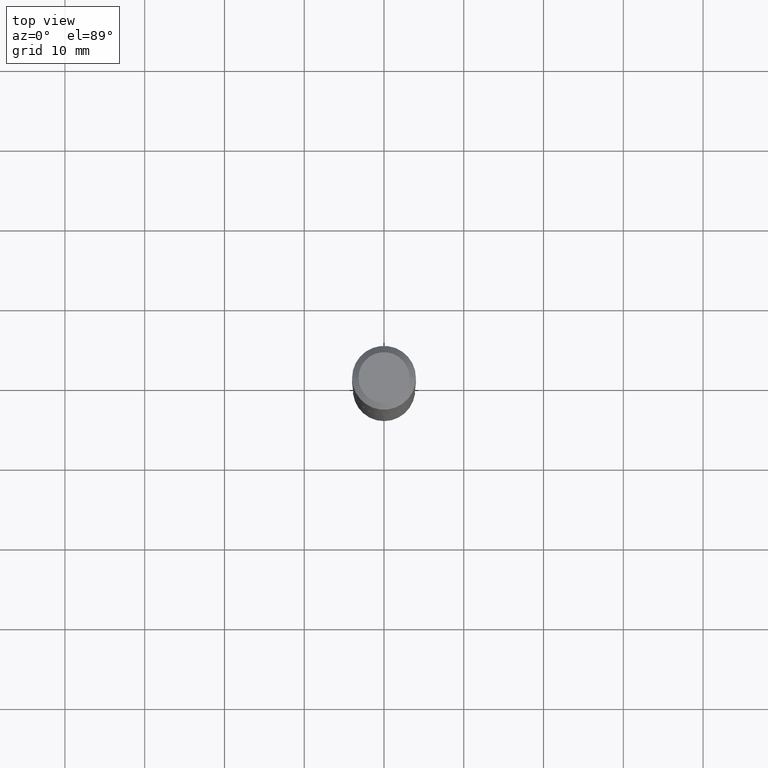
[diagram: clean part render]
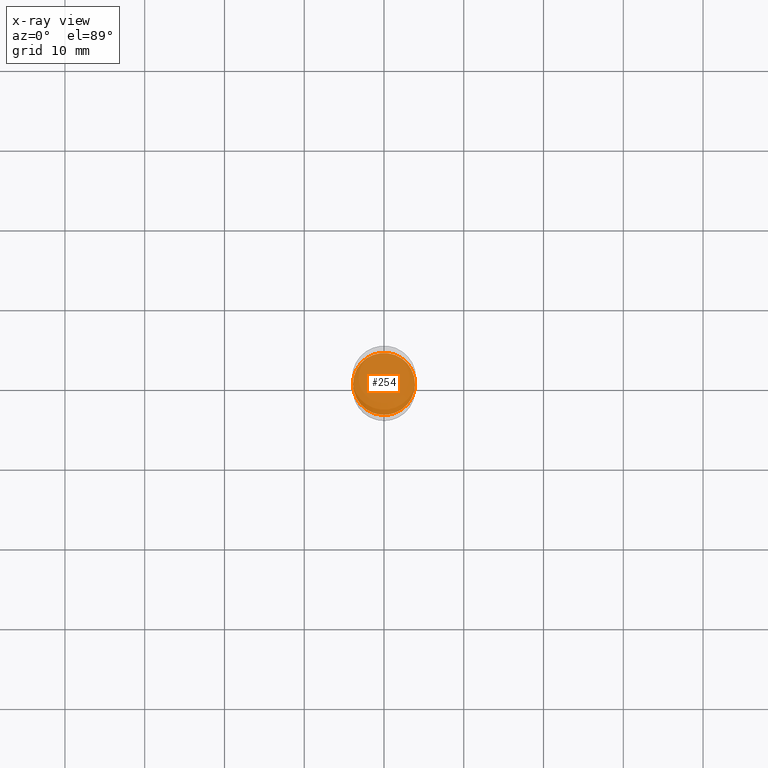
[diagram: x-ray — body ghosted, one internal face saturated and labeled with its STEP entity id]
A machine part, top view, then the same camera in x-ray: the body is ghosted and one INTERNAL B-rep face — a face not visible from any outside direction — is saturated and labeled: STEP entity #254.
In plain terms, the highlighted planar face has unit normal (-0, 0, 1).
Its self-contained STEP definition (entity closure, byte-faithful):
#27 = FACE_OUTER_BOUND ( 'NONE', #381, .T. ) ;
#30 = AXIS2_PLACEMENT_3D ( 'NONE', #90, #233, #303 ) ;
#53 = CIRCLE ( 'NONE', #482, 0.1530499999999999916 ) ;
#69 = ORIENTED_EDGE ( 'NONE', *, *, #403, .F. ) ;
#73 = ORIENTED_EDGE ( 'NONE', *, *, #174, .F. ) ;
#84 = DIRECTION ( 'NONE',  ( -2.445468806185136597E-29, 3.491481338843145583E-15, 1.000000000000000000 ) ) ;
#90 = CARTESIAN_POINT ( 'NONE',  ( 4.409669351313038346E-29, -6.295839150201959750E-15, -1.803200000000000136 ) ) ;
#142 = VERTEX_POINT ( 'NONE', #383 ) ;
#168 = DIRECTION ( 'NONE',  ( 1.000000000000000000, -6.982962677686265922E-15, 4.876176775795935793E-29 ) ) ;
#174 = EDGE_CURVE ( 'NONE', #142, #386, #378, .T. ) ;
#195 = CARTESIAN_POINT ( 'NONE',  ( 4.409669351313038346E-29, -6.295839150201959750E-15, -1.803200000000000136 ) ) ;
#233 = DIRECTION ( 'NONE',  ( -2.445468806185136597E-29, 3.491481338843145583E-15, 1.000000000000000000 ) ) ;
#254 = ADVANCED_FACE ( 'NONE', ( #27 ), #423, .F. ) ;
#262 = AXIS2_PLACEMENT_3D ( 'NONE', #362, #431, #168 ) ;
#303 = DIRECTION ( 'NONE',  ( 1.000000000000000000, -6.982962677686265922E-15, 0.000000000000000000 ) ) ;
#337 = DIRECTION ( 'NONE',  ( 1.000000000000000000, -6.982962677686265922E-15, 0.000000000000000000 ) ) ;
#362 = CARTESIAN_POINT ( 'NONE',  ( 4.409669351313038346E-29, -6.295839150201959750E-15, -1.803200000000000136 ) ) ;
#378 = CIRCLE ( 'NONE', #30, 0.1530499999999999916 ) ;
#381 = EDGE_LOOP ( 'NONE', ( #69, #73 ) ) ;
#383 = CARTESIAN_POINT ( 'NONE',  ( -0.1530499999999999916, -5.205704265947015077E-15, -1.803200000000000136 ) ) ;
#386 = VERTEX_POINT ( 'NONE', #407 ) ;
#403 = EDGE_CURVE ( 'NONE', #386, #142, #53, .T. ) ;
#407 = CARTESIAN_POINT ( 'NONE',  ( 0.1530499999999999916, -7.364581588021842889E-15, -1.803200000000000136 ) ) ;
#423 = PLANE ( 'NONE',  #262 ) ;
#431 = DIRECTION ( 'NONE',  ( -2.438088387897960049E-29, 3.491481338843145188E-15, 1.000000000000000000 ) ) ;
#482 = AXIS2_PLACEMENT_3D ( 'NONE', #195, #84, #337 ) ;